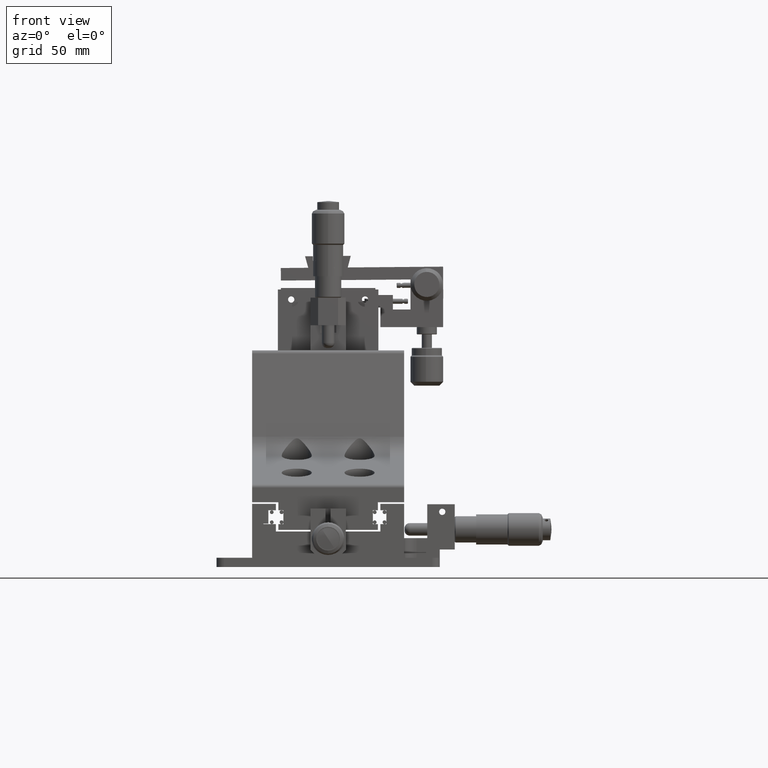
[diagram: clean part render]
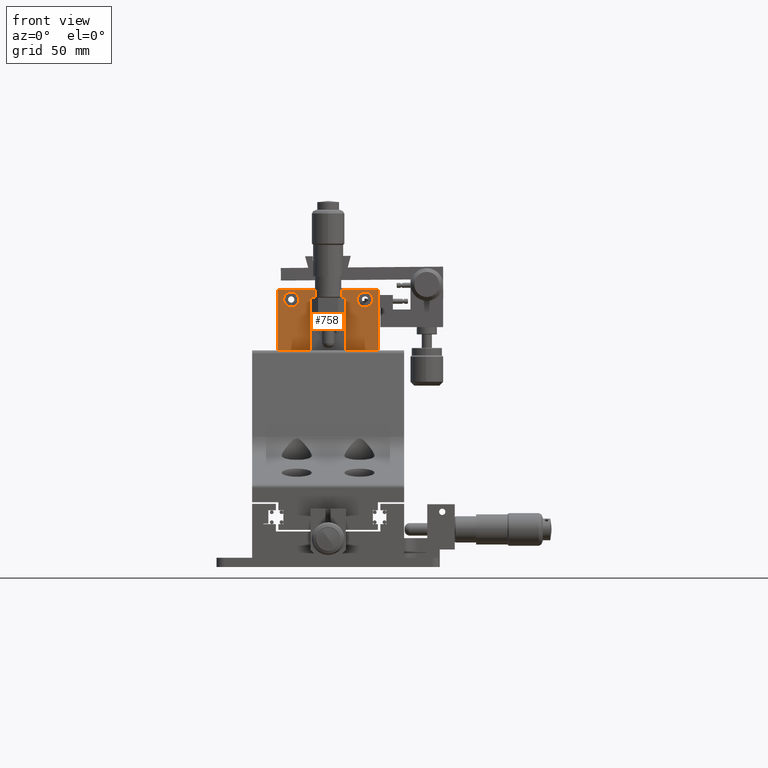
[diagram: same view with one face highlighted and labeled with its STEP entity id]
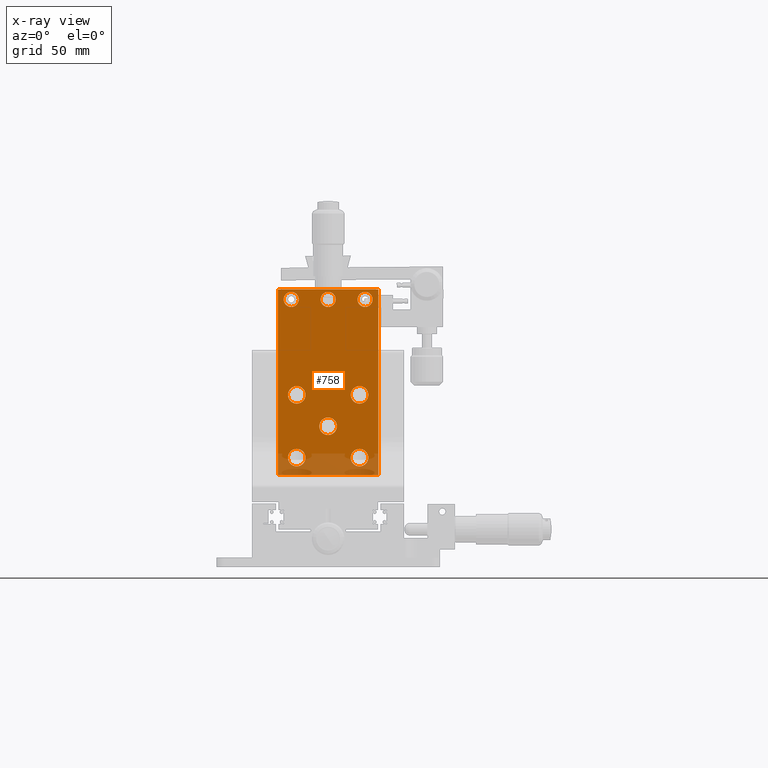
[diagram: x-ray of the same camera — body ghosted, the highlighted face saturated]
A machine part, front view. The second image highlights one B-rep face of the part: STEP entity #758.
The next image is the same camera in x-ray: the body ghosted, the highlighted face saturated — about 10% of this face is hidden behind the body in this view.
In plain terms, the highlighted planar face has unit normal (-0, 1, -0).
Its self-contained STEP definition (entity closure, byte-faithful):
#615 = VERTEX_POINT ( 'NONE', #13890 ) ;
#624 = EDGE_CURVE ( 'NONE', #657, #615, #13925, .T. ) ;
#657 = VERTEX_POINT ( 'NONE', #13945 ) ;
#660 = VERTEX_POINT ( 'NONE', #13965 ) ;
#661 = VERTEX_POINT ( 'NONE', #13977 ) ;
#663 = EDGE_CURVE ( 'NONE', #615, #657, #13976, .T. ) ;
#670 = VERTEX_POINT ( 'NONE', #14005 ) ;
#675 = VERTEX_POINT ( 'NONE', #13996 ) ;
#677 = EDGE_CURVE ( 'NONE', #670, #675, #13989, .T. ) ;
#701 = EDGE_CURVE ( 'NONE', #716, #719, #14070, .T. ) ;
#702 = EDGE_CURVE ( 'NONE', #660, #716, #14065, .T. ) ;
#716 = VERTEX_POINT ( 'NONE', #14108 ) ;
#719 = VERTEX_POINT ( 'NONE', #14097 ) ;
#728 = VERTEX_POINT ( 'NONE', #14133 ) ;
#731 = VERTEX_POINT ( 'NONE', #14130 ) ;
#733 = EDGE_CURVE ( 'NONE', #728, #731, #14139, .T. ) ;
#737 = EDGE_CURVE ( 'NONE', #661, #660, #14176, .T. ) ;
#738 = EDGE_LOOP ( 'NONE', ( #787, #790, #791, #757 ) ) ;
#739 = ORIENTED_EDGE ( 'NONE', *, *, #742, .T. ) ;
#740 = EDGE_CURVE ( 'NONE', #799, #800, #14126, .T. ) ;
#741 = ORIENTED_EDGE ( 'NONE', *, *, #733, .F. ) ;
#742 = EDGE_CURVE ( 'NONE', #817, #818, #14118, .T. ) ;
#743 = EDGE_CURVE ( 'NONE', #818, #817, #14120, .T. ) ;
#747 = EDGE_CURVE ( 'NONE', #675, #670, #14161, .T. ) ;
#748 = ORIENTED_EDGE ( 'NONE', *, *, #677, .F. ) ;
#750 = ORIENTED_EDGE ( 'NONE', *, *, #663, .F. ) ;
#751 = EDGE_LOOP ( 'NONE', ( #815, #748 ) ) ;
#756 = VERTEX_POINT ( 'NONE', #14171 ) ;
#757 = ORIENTED_EDGE ( 'NONE', *, *, #737, .F. ) ;
#758 = ADVANCED_FACE ( 'NONE', ( #14125, #14156, #14150, #14209, #14199, #14198, #14197, #14195, #14194 ), #14149, .F. ) ;
#759 = EDGE_LOOP ( 'NONE', ( #816, #741 ) ) ;
#760 = EDGE_LOOP ( 'NONE', ( #739, #801 ) ) ;
#761 = EDGE_LOOP ( 'NONE', ( #819, #750 ) ) ;
#773 = EDGE_CURVE ( 'NONE', #731, #728, #14196, .T. ) ;
#777 = ORIENTED_EDGE ( 'NONE', *, *, #855, .T. ) ;
#778 = EDGE_CURVE ( 'NONE', #793, #792, #14223, .T. ) ;
#787 = ORIENTED_EDGE ( 'NONE', *, *, #812, .F. ) ;
#789 = EDGE_LOOP ( 'NONE', ( #794, #813 ) ) ;
#790 = ORIENTED_EDGE ( 'NONE', *, *, #701, .F. ) ;
#791 = ORIENTED_EDGE ( 'NONE', *, *, #702, .F. ) ;
#792 = VERTEX_POINT ( 'NONE', #14218 ) ;
#793 = VERTEX_POINT ( 'NONE', #14213 ) ;
#794 = ORIENTED_EDGE ( 'NONE', *, *, #795, .T. ) ;
#795 = EDGE_CURVE ( 'NONE', #798, #756, #14211, .T. ) ;
#796 = EDGE_CURVE ( 'NONE', #756, #798, #14254, .T. ) ;
#798 = VERTEX_POINT ( 'NONE', #14265 ) ;
#799 = VERTEX_POINT ( 'NONE', #14264 ) ;
#800 = VERTEX_POINT ( 'NONE', #14261 ) ;
#801 = ORIENTED_EDGE ( 'NONE', *, *, #743, .T. ) ;
#802 = EDGE_LOOP ( 'NONE', ( #803, #806 ) ) ;
#803 = ORIENTED_EDGE ( 'NONE', *, *, #740, .T. ) ;
#804 = EDGE_CURVE ( 'NONE', #800, #799, #14242, .T. ) ;
#805 = EDGE_CURVE ( 'NONE', #809, #814, #14245, .T. ) ;
#806 = ORIENTED_EDGE ( 'NONE', *, *, #804, .T. ) ;
#807 = EDGE_LOOP ( 'NONE', ( #808, #810 ) ) ;
#808 = ORIENTED_EDGE ( 'NONE', *, *, #805, .T. ) ;
#809 = VERTEX_POINT ( 'NONE', #14255 ) ;
#810 = ORIENTED_EDGE ( 'NONE', *, *, #811, .T. ) ;
#811 = EDGE_CURVE ( 'NONE', #814, #809, #14250, .T. ) ;
#812 = EDGE_CURVE ( 'NONE', #719, #661, #14296, .T. ) ;
#813 = ORIENTED_EDGE ( 'NONE', *, *, #796, .T. ) ;
#814 = VERTEX_POINT ( 'NONE', #14289 ) ;
#815 = ORIENTED_EDGE ( 'NONE', *, *, #747, .F. ) ;
#816 = ORIENTED_EDGE ( 'NONE', *, *, #773, .F. ) ;
#817 = VERTEX_POINT ( 'NONE', #14256 ) ;
#818 = VERTEX_POINT ( 'NONE', #14244 ) ;
#819 = ORIENTED_EDGE ( 'NONE', *, *, #624, .F. ) ;
#853 = EDGE_LOOP ( 'NONE', ( #777, #856 ) ) ;
#855 = EDGE_CURVE ( 'NONE', #792, #793, #14362, .T. ) ;
#856 = ORIENTED_EDGE ( 'NONE', *, *, #778, .T. ) ;
#13871 = DIRECTION ( 'NONE',  ( 3.053848253006517700E-016, -1.000000000000000000, 3.394182036733197400E-016 ) ) ;
#13873 = AXIS2_PLACEMENT_3D ( 'NONE', #13926, #13871, #13915 ) ;
#13890 = CARTESIAN_POINT ( 'NONE',  ( -7.089093650661255900E-015, 44.34999999999888600, 109.5499999999990300 ) ) ;
#13915 = DIRECTION ( 'NONE',  ( 2.782906914436287700E-017, 0.0000000000000000000, -1.000000000000000000 ) ) ;
#13925 = CIRCLE ( 'NONE', #13873, 3.000000000000002700 ) ;
#13926 = CARTESIAN_POINT ( 'NONE',  ( -6.609538419720744000E-015, 44.34999999999888600, 106.5499999999990300 ) ) ;
#13945 = CARTESIAN_POINT ( 'NONE',  ( -6.526051212287655000E-015, 44.34999999999888600, 103.5499999999990300 ) ) ;
#13960 = AXIS2_PLACEMENT_3D ( 'NONE', #14014, #14013, #14012 ) ;
#13965 = CARTESIAN_POINT ( 'NONE',  ( -20.00000000000000400, 44.34999999999888600, 110.5499999999990500 ) ) ;
#13976 = CIRCLE ( 'NONE', #13960, 3.000000000000002700 ) ;
#13977 = CARTESIAN_POINT ( 'NONE',  ( -20.00000000000000400, 44.34999999999885700, 36.54999999999905200 ) ) ;
#13989 = CIRCLE ( 'NONE', #14046, 3.000000000000002700 ) ;
#13996 = CARTESIAN_POINT ( 'NONE',  ( -14.70000000000000600, 44.34999999999888600, 103.5499999999990300 ) ) ;
#14005 = CARTESIAN_POINT ( 'NONE',  ( -14.70000000000000800, 44.34999999999888600, 109.5499999999990300 ) ) ;
#14012 = DIRECTION ( 'NONE',  ( 2.782906914436287700E-017, 0.0000000000000000000, -1.000000000000000000 ) ) ;
#14013 = DIRECTION ( 'NONE',  ( 3.053848253006517700E-016, -1.000000000000000000, 3.394182036733197400E-016 ) ) ;
#14014 = CARTESIAN_POINT ( 'NONE',  ( -6.609538419720744000E-015, 44.34999999999888600, 106.5499999999990300 ) ) ;
#14043 = DIRECTION ( 'NONE',  ( 0.0000000000000000000, 0.0000000000000000000, -1.000000000000000000 ) ) ;
#14044 = DIRECTION ( 'NONE',  ( 3.053848253006517700E-016, -1.000000000000000000, 3.394182036733197400E-016 ) ) ;
#14045 = CARTESIAN_POINT ( 'NONE',  ( -14.70000000000000600, 44.34999999999888600, 106.5499999999990300 ) ) ;
#14046 = AXIS2_PLACEMENT_3D ( 'NONE', #14045, #14044, #14043 ) ;
#14062 = DIRECTION ( 'NONE',  ( 1.000000000000000000, 3.053848253006516700E-016, -3.191156260509986400E-016 ) ) ;
#14063 = VECTOR ( 'NONE', #14062, 1000.000000000000000 ) ;
#14064 = CARTESIAN_POINT ( 'NONE',  ( 19.99999999999999600, 44.34999999999890000, 110.5499999999990500 ) ) ;
#14065 = LINE ( 'NONE', #14064, #14063 ) ;
#14066 = DIRECTION ( 'NONE',  ( 2.782906914436282800E-017, -3.394182036733197400E-016, -1.000000000000000000 ) ) ;
#14067 = VECTOR ( 'NONE', #14066, 1000.000000000000000 ) ;
#14069 = CARTESIAN_POINT ( 'NONE',  ( 19.99999999999999600, 44.34999999999887200, 36.54999999999904500 ) ) ;
#14070 = LINE ( 'NONE', #14069, #14067 ) ;
#14097 = CARTESIAN_POINT ( 'NONE',  ( 19.99999999999999600, 44.34999999999887200, 36.54999999999904500 ) ) ;
#14108 = CARTESIAN_POINT ( 'NONE',  ( 19.99999999999999600, 44.34999999999890000, 110.5499999999990500 ) ) ;
#14118 = CIRCLE ( 'NONE', #14168, 3.500000000000003100 ) ;
#14119 = DIRECTION ( 'NONE',  ( -3.053848253006517700E-016, 1.000000000000000000, -3.394182036733197400E-016 ) ) ;
#14120 = CIRCLE ( 'NONE', #14170, 3.500000000000003100 ) ;
#14121 = DIRECTION ( 'NONE',  ( 0.0000000000000000000, 0.0000000000000000000, -1.000000000000000000 ) ) ;
#14122 = DIRECTION ( 'NONE',  ( 3.053848253006517700E-016, -1.000000000000000000, 3.394182036733197400E-016 ) ) ;
#14123 = CARTESIAN_POINT ( 'NONE',  ( 14.69999999999999200, 44.34999999999889300, 106.5499999999990300 ) ) ;
#14124 = AXIS2_PLACEMENT_3D ( 'NONE', #14177, #14119, #14169 ) ;
#14125 = FACE_BOUND ( 'NONE', #751, .T. ) ;
#14126 = CIRCLE ( 'NONE', #14124, 3.500000000000003100 ) ;
#14130 = CARTESIAN_POINT ( 'NONE',  ( 14.69999999999999200, 44.34999999999889300, 103.5499999999990300 ) ) ;
#14132 = AXIS2_PLACEMENT_3D ( 'NONE', #14123, #14122, #14121 ) ;
#14133 = CARTESIAN_POINT ( 'NONE',  ( 14.69999999999999000, 44.34999999999889300, 109.5499999999990300 ) ) ;
#14139 = CIRCLE ( 'NONE', #14132, 3.000000000000002700 ) ;
#14149 = PLANE ( 'NONE',  #14202 ) ;
#14150 = FACE_BOUND ( 'NONE', #759, .T. ) ;
#14151 = AXIS2_PLACEMENT_3D ( 'NONE', #14206, #14205, #14204 ) ;
#14156 = FACE_BOUND ( 'NONE', #761, .T. ) ;
#14158 = DIRECTION ( 'NONE',  ( 0.0000000000000000000, 0.0000000000000000000, -1.000000000000000000 ) ) ;
#14159 = DIRECTION ( 'NONE',  ( -3.053848253006517700E-016, 1.000000000000000000, -3.394182036733197400E-016 ) ) ;
#14161 = CIRCLE ( 'NONE', #14151, 3.000000000000002700 ) ;
#14162 = CARTESIAN_POINT ( 'NONE',  ( -12.50000000000000500, 44.34999999999886500, 43.54999999999904500 ) ) ;
#14163 = DIRECTION ( 'NONE',  ( 0.0000000000000000000, 0.0000000000000000000, -1.000000000000000000 ) ) ;
#14164 = DIRECTION ( 'NONE',  ( -3.053848253006517700E-016, 1.000000000000000000, -3.394182036733197400E-016 ) ) ;
#14165 = CARTESIAN_POINT ( 'NONE',  ( -12.50000000000000500, 44.34999999999886500, 43.54999999999904500 ) ) ;
#14168 = AXIS2_PLACEMENT_3D ( 'NONE', #14165, #14164, #14163 ) ;
#14169 = DIRECTION ( 'NONE',  ( 0.0000000000000000000, 0.0000000000000000000, -1.000000000000000000 ) ) ;
#14170 = AXIS2_PLACEMENT_3D ( 'NONE', #14162, #14159, #14158 ) ;
#14171 = CARTESIAN_POINT ( 'NONE',  ( 12.49999999999999500, 44.34999999999887200, 40.04999999999904500 ) ) ;
#14173 = DIRECTION ( 'NONE',  ( -7.471348741400627100E-017, 3.394182036733197400E-016, 1.000000000000000000 ) ) ;
#14174 = VECTOR ( 'NONE', #14173, 1000.000000000000000 ) ;
#14175 = CARTESIAN_POINT ( 'NONE',  ( -20.00000000000000400, 44.34999999999885700, 36.54999999999905200 ) ) ;
#14176 = LINE ( 'NONE', #14175, #14174 ) ;
#14177 = CARTESIAN_POINT ( 'NONE',  ( 12.49999999999999500, 44.34999999999887900, 68.54999999999904500 ) ) ;
#14188 = DIRECTION ( 'NONE',  ( -2.782906914436282800E-017, 3.394182036733197400E-016, 1.000000000000000000 ) ) ;
#14189 = DIRECTION ( 'NONE',  ( -3.053848253006517700E-016, 1.000000000000000000, -3.394182036733197400E-016 ) ) ;
#14192 = DIRECTION ( 'NONE',  ( 3.053848253006517700E-016, -1.000000000000000000, 3.394182036733197400E-016 ) ) ;
#14193 = CARTESIAN_POINT ( 'NONE',  ( -20.00000000000000400, 44.34999999999885700, 36.54999999999905200 ) ) ;
#14194 = FACE_BOUND ( 'NONE', #853, .T. ) ;
#14195 = FACE_BOUND ( 'NONE', #789, .T. ) ;
#14196 = CIRCLE ( 'NONE', #14226, 3.000000000000002700 ) ;
#14197 = FACE_OUTER_BOUND ( 'NONE', #738, .T. ) ;
#14198 = FACE_BOUND ( 'NONE', #807, .T. ) ;
#14199 = FACE_BOUND ( 'NONE', #802, .T. ) ;
#14202 = AXIS2_PLACEMENT_3D ( 'NONE', #14193, #14189, #14188 ) ;
#14204 = DIRECTION ( 'NONE',  ( 0.0000000000000000000, 0.0000000000000000000, -1.000000000000000000 ) ) ;
#14205 = DIRECTION ( 'NONE',  ( 3.053848253006517700E-016, -1.000000000000000000, 3.394182036733197400E-016 ) ) ;
#14206 = CARTESIAN_POINT ( 'NONE',  ( -14.70000000000000600, 44.34999999999888600, 106.5499999999990300 ) ) ;
#14209 = FACE_BOUND ( 'NONE', #760, .T. ) ;
#14211 = CIRCLE ( 'NONE', #14260, 3.500000000000003100 ) ;
#14213 = CARTESIAN_POINT ( 'NONE',  ( -12.50000000000000500, 44.34999999999887200, 65.04999999999904500 ) ) ;
#14214 = DIRECTION ( 'NONE',  ( 0.0000000000000000000, 0.0000000000000000000, 1.000000000000000000 ) ) ;
#14215 = DIRECTION ( 'NONE',  ( -3.053848253006517700E-016, 1.000000000000000000, -3.394182036733197400E-016 ) ) ;
#14218 = CARTESIAN_POINT ( 'NONE',  ( -12.50000000000000500, 44.34999999999887200, 72.04999999999904500 ) ) ;
#14223 = CIRCLE ( 'NONE', #14228, 3.500000000000003100 ) ;
#14225 = DIRECTION ( 'NONE',  ( 0.0000000000000000000, 0.0000000000000000000, -1.000000000000000000 ) ) ;
#14226 = AXIS2_PLACEMENT_3D ( 'NONE', #14230, #14192, #14225 ) ;
#14227 = CARTESIAN_POINT ( 'NONE',  ( -12.50000000000000500, 44.34999999999887200, 68.54999999999904500 ) ) ;
#14228 = AXIS2_PLACEMENT_3D ( 'NONE', #14227, #14215, #14214 ) ;
#14230 = CARTESIAN_POINT ( 'NONE',  ( 14.69999999999999200, 44.34999999999889300, 106.5499999999990300 ) ) ;
#14238 = DIRECTION ( 'NONE',  ( 0.0000000000000000000, 0.0000000000000000000, -1.000000000000000000 ) ) ;
#14239 = DIRECTION ( 'NONE',  ( -3.053848253006517700E-016, 1.000000000000000000, -3.394182036733197400E-016 ) ) ;
#14240 = CARTESIAN_POINT ( 'NONE',  ( 12.49999999999999500, 44.34999999999887900, 68.54999999999904500 ) ) ;
#14241 = AXIS2_PLACEMENT_3D ( 'NONE', #14240, #14239, #14238 ) ;
#14242 = CIRCLE ( 'NONE', #14241, 3.500000000000003100 ) ;
#14244 = CARTESIAN_POINT ( 'NONE',  ( -12.50000000000000500, 44.34999999999886500, 47.04999999999905200 ) ) ;
#14245 = CIRCLE ( 'NONE', #14270, 3.500000000000003100 ) ;
#14250 = CIRCLE ( 'NONE', #14293, 3.500000000000003100 ) ;
#14251 = DIRECTION ( 'NONE',  ( 0.0000000000000000000, 0.0000000000000000000, 1.000000000000000000 ) ) ;
#14252 = DIRECTION ( 'NONE',  ( -3.053848253006517700E-016, 1.000000000000000000, -3.394182036733197400E-016 ) ) ;
#14253 = AXIS2_PLACEMENT_3D ( 'NONE', #14263, #14252, #14251 ) ;
#14254 = CIRCLE ( 'NONE', #14253, 3.500000000000003100 ) ;
#14255 = CARTESIAN_POINT ( 'NONE',  ( -5.301572169935691600E-015, 44.34999999999887200, 59.54999999999904500 ) ) ;
#14256 = CARTESIAN_POINT ( 'NONE',  ( -12.50000000000000500, 44.34999999999886500, 40.04999999999904500 ) ) ;
#14257 = DIRECTION ( 'NONE',  ( 0.0000000000000000000, 0.0000000000000000000, 1.000000000000000000 ) ) ;
#14258 = DIRECTION ( 'NONE',  ( -3.053848253006517700E-016, 1.000000000000000000, -3.394182036733197400E-016 ) ) ;
#14259 = CARTESIAN_POINT ( 'NONE',  ( 12.49999999999999500, 44.34999999999887200, 43.54999999999904500 ) ) ;
#14260 = AXIS2_PLACEMENT_3D ( 'NONE', #14259, #14258, #14257 ) ;
#14261 = CARTESIAN_POINT ( 'NONE',  ( 12.49999999999999500, 44.34999999999887900, 72.04999999999904500 ) ) ;
#14263 = CARTESIAN_POINT ( 'NONE',  ( 12.49999999999999500, 44.34999999999887200, 43.54999999999904500 ) ) ;
#14264 = CARTESIAN_POINT ( 'NONE',  ( 12.49999999999999500, 44.34999999999887900, 65.04999999999904500 ) ) ;
#14265 = CARTESIAN_POINT ( 'NONE',  ( 12.49999999999999500, 44.34999999999887200, 47.04999999999905200 ) ) ;
#14270 = AXIS2_PLACEMENT_3D ( 'NONE', #14300, #14299, #14298 ) ;
#14288 = VECTOR ( 'NONE', #14294, 1000.000000000000000 ) ;
#14289 = CARTESIAN_POINT ( 'NONE',  ( -4.678142306223578000E-015, 44.34999999999887200, 52.54999999999904500 ) ) ;
#14290 = DIRECTION ( 'NONE',  ( -2.782906914436287700E-017, 0.0000000000000000000, 1.000000000000000000 ) ) ;
#14291 = DIRECTION ( 'NONE',  ( -3.053848253006517700E-016, 1.000000000000000000, -3.394182036733197400E-016 ) ) ;
#14292 = CARTESIAN_POINT ( 'NONE',  ( -5.204170427930421300E-015, 44.34999999999887200, 56.04999999999904500 ) ) ;
#14293 = AXIS2_PLACEMENT_3D ( 'NONE', #14292, #14291, #14290 ) ;
#14294 = DIRECTION ( 'NONE',  ( -1.000000000000000000, -3.053848253006517200E-016, 5.890710465447757600E-017 ) ) ;
#14295 = CARTESIAN_POINT ( 'NONE',  ( 19.99999999999999600, 44.34999999999887200, 36.54999999999904500 ) ) ;
#14296 = LINE ( 'NONE', #14295, #14288 ) ;
#14298 = DIRECTION ( 'NONE',  ( -2.782906914436287700E-017, 0.0000000000000000000, 1.000000000000000000 ) ) ;
#14299 = DIRECTION ( 'NONE',  ( -3.053848253006517700E-016, 1.000000000000000000, -3.394182036733197400E-016 ) ) ;
#14300 = CARTESIAN_POINT ( 'NONE',  ( -5.204170427930421300E-015, 44.34999999999887200, 56.04999999999904500 ) ) ;
#14355 = DIRECTION ( 'NONE',  ( 0.0000000000000000000, 0.0000000000000000000, 1.000000000000000000 ) ) ;
#14356 = DIRECTION ( 'NONE',  ( -3.053848253006517700E-016, 1.000000000000000000, -3.394182036733197400E-016 ) ) ;
#14357 = CARTESIAN_POINT ( 'NONE',  ( -12.50000000000000500, 44.34999999999887200, 68.54999999999904500 ) ) ;
#14362 = CIRCLE ( 'NONE', #14367, 3.500000000000003100 ) ;
#14367 = AXIS2_PLACEMENT_3D ( 'NONE', #14357, #14356, #14355 ) ;